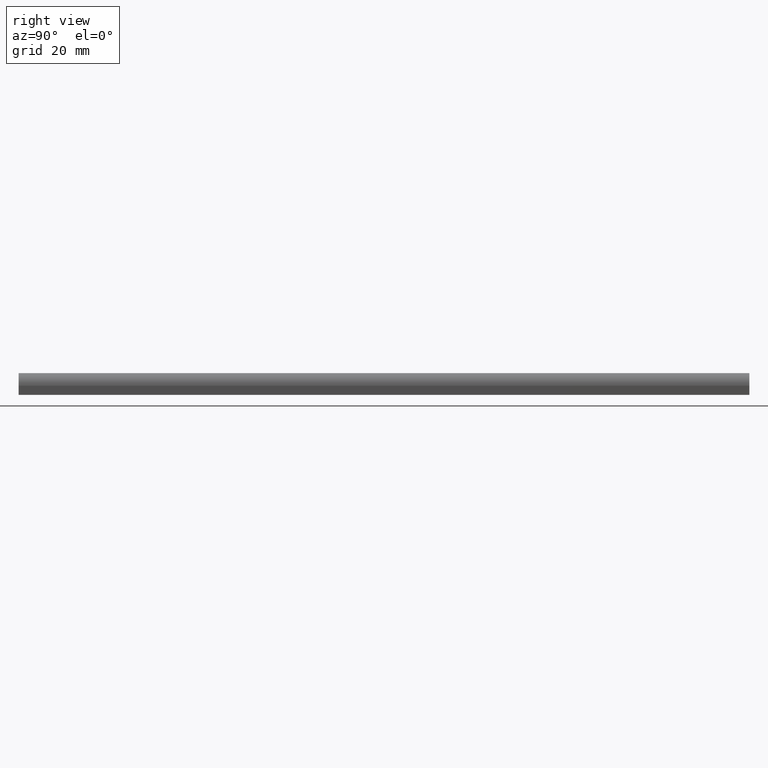
[diagram: clean part render]
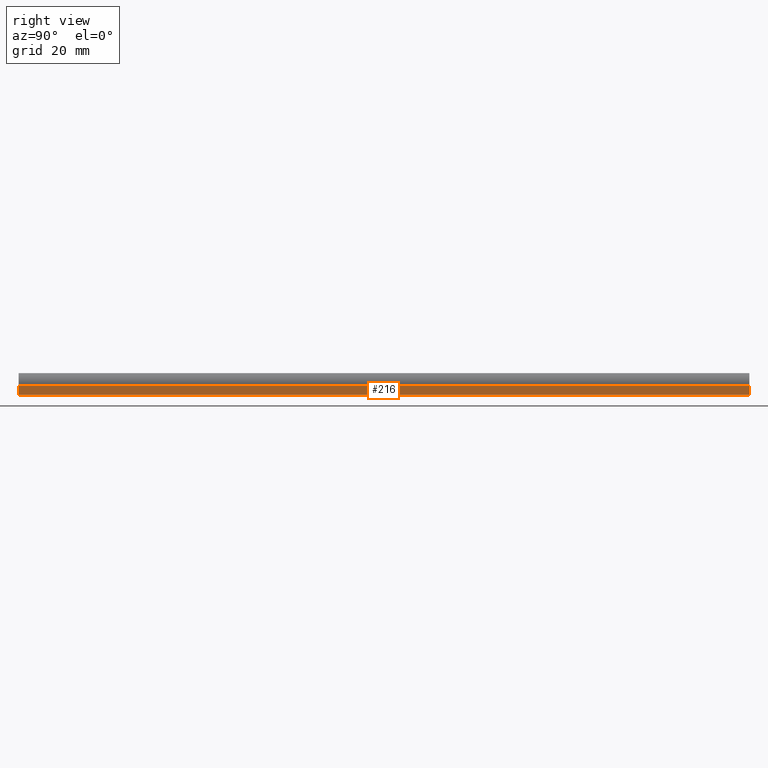
[diagram: same view with one face highlighted and labeled with its STEP entity id]
A machine part, right view. The second image highlights one B-rep face of the part: STEP entity #216.
In plain terms, the highlighted planar face has unit normal (1, 0, 0).
Its self-contained STEP definition (entity closure, byte-faithful):
#1 = DIRECTION ( 'NONE',  ( -0.0000000000000000000, -0.0000000000000000000, 1.000000000000000000 ) ) ;
#5 = CARTESIAN_POINT ( 'NONE',  ( 3.500000000000000000, 1000.000000000000000, -3.000000000000000000 ) ) ;
#16 = EDGE_CURVE ( 'NONE', #73, #200, #29, .T. ) ;
#24 = ORIENTED_EDGE ( 'NONE', *, *, #120, .F. ) ;
#25 = VERTEX_POINT ( 'NONE', #240 ) ;
#26 = DIRECTION ( 'NONE',  ( 0.0000000000000000000, -1.000000000000000000, 0.0000000000000000000 ) ) ;
#29 = LINE ( 'NONE', #201, #85 ) ;
#38 = CARTESIAN_POINT ( 'NONE',  ( 3.500000000000000000, 1000.000000000000000, -3.000000000000000000 ) ) ;
#39 = ORIENTED_EDGE ( 'NONE', *, *, #16, .T. ) ;
#41 = EDGE_CURVE ( 'NONE', #206, #200, #101, .T. ) ;
#63 = CARTESIAN_POINT ( 'NONE',  ( 3.500000000000000000, 200.0000000000000000, 0.0000000000000000000 ) ) ;
#71 = EDGE_CURVE ( 'NONE', #25, #73, #186, .T. ) ;
#73 = VERTEX_POINT ( 'NONE', #204 ) ;
#79 = ORIENTED_EDGE ( 'NONE', *, *, #71, .T. ) ;
#82 = VECTOR ( 'NONE', #170, 1000.000000000000000 ) ;
#85 = VECTOR ( 'NONE', #26, 1000.000000000000000 ) ;
#88 = LINE ( 'NONE', #5, #82 ) ;
#93 = CARTESIAN_POINT ( 'NONE',  ( 3.500000000000000000, 0.0000000000000000000, -3.000000000000000000 ) ) ;
#96 = CARTESIAN_POINT ( 'NONE',  ( 3.500000000000000000, 0.0000000000000000000, -0.5000000000000000000 ) ) ;
#101 = LINE ( 'NONE', #223, #127 ) ;
#120 = EDGE_CURVE ( 'NONE', #25, #206, #88, .T. ) ;
#123 = DIRECTION ( 'NONE',  ( 1.000000000000000000, 0.0000000000000000000, 0.0000000000000000000 ) ) ;
#127 = VECTOR ( 'NONE', #163, 1000.000000000000000 ) ;
#137 = EDGE_LOOP ( 'NONE', ( #185, #24, #79, #39 ) ) ;
#141 = DIRECTION ( 'NONE',  ( 0.0000000000000000000, 0.0000000000000000000, -1.000000000000000000 ) ) ;
#163 = DIRECTION ( 'NONE',  ( -0.0000000000000000000, -0.0000000000000000000, 1.000000000000000000 ) ) ;
#168 = PLANE ( 'NONE',  #179 ) ;
#170 = DIRECTION ( 'NONE',  ( 0.0000000000000000000, -1.000000000000000000, 0.0000000000000000000 ) ) ;
#179 = AXIS2_PLACEMENT_3D ( 'NONE', #38, #123, #141 ) ;
#185 = ORIENTED_EDGE ( 'NONE', *, *, #41, .F. ) ;
#186 = LINE ( 'NONE', #63, #237 ) ;
#200 = VERTEX_POINT ( 'NONE', #96 ) ;
#201 = CARTESIAN_POINT ( 'NONE',  ( 3.500000000000000000, 1000.000000000000000, -0.5000000000000000000 ) ) ;
#203 = FACE_OUTER_BOUND ( 'NONE', #137, .T. ) ;
#204 = CARTESIAN_POINT ( 'NONE',  ( 3.500000000000000000, 200.0000000000000000, -0.5000000000000000000 ) ) ;
#206 = VERTEX_POINT ( 'NONE', #93 ) ;
#216 = ADVANCED_FACE ( 'NONE', ( #203 ), #168, .T. ) ;
#223 = CARTESIAN_POINT ( 'NONE',  ( 3.500000000000000000, 0.0000000000000000000, 0.0000000000000000000 ) ) ;
#237 = VECTOR ( 'NONE', #1, 1000.000000000000000 ) ;
#240 = CARTESIAN_POINT ( 'NONE',  ( 3.500000000000000000, 200.0000000000000000, -3.000000000000000000 ) ) ;